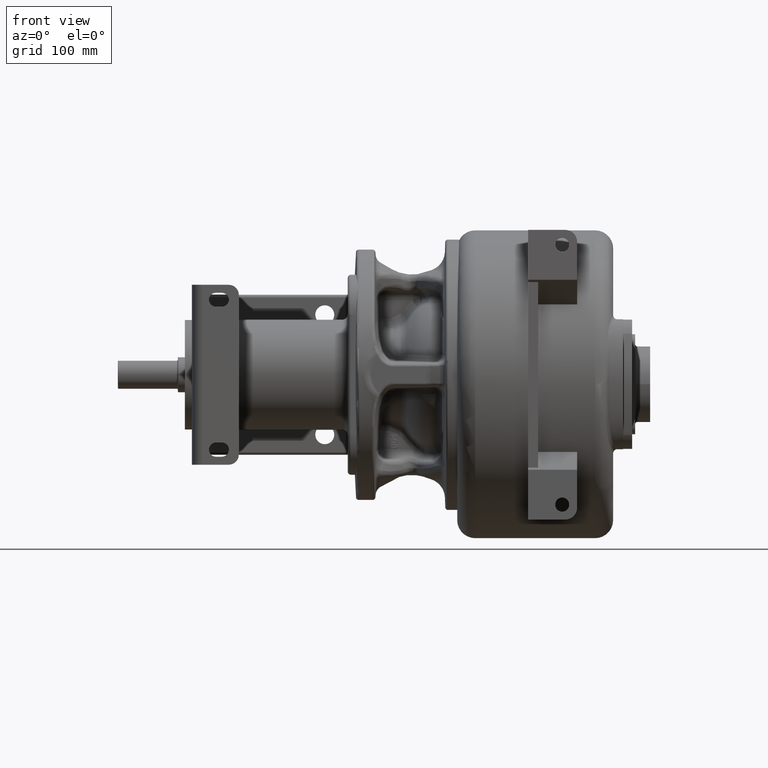
[diagram: clean part render]
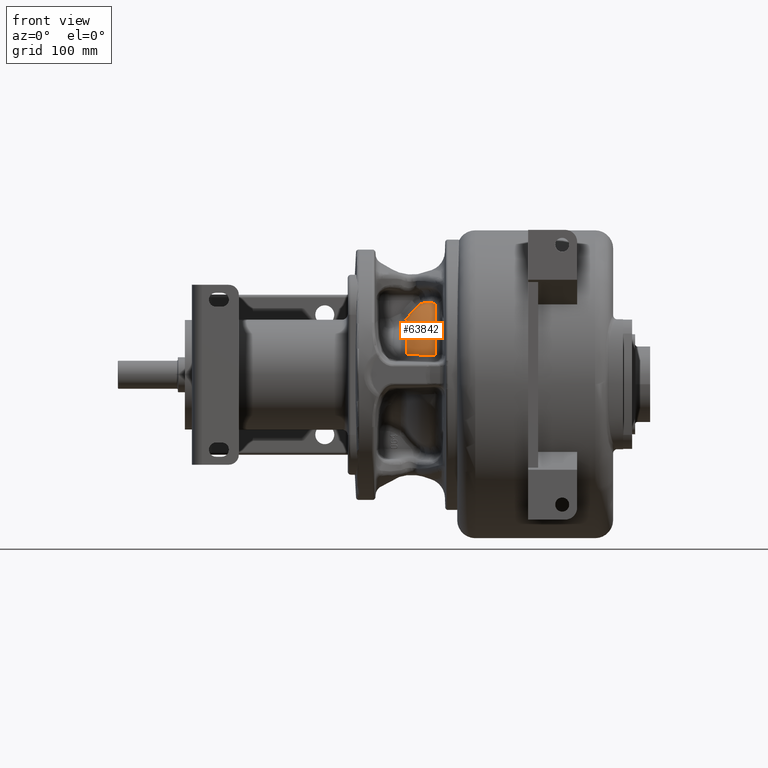
[diagram: same view with one face highlighted and labeled with its STEP entity id]
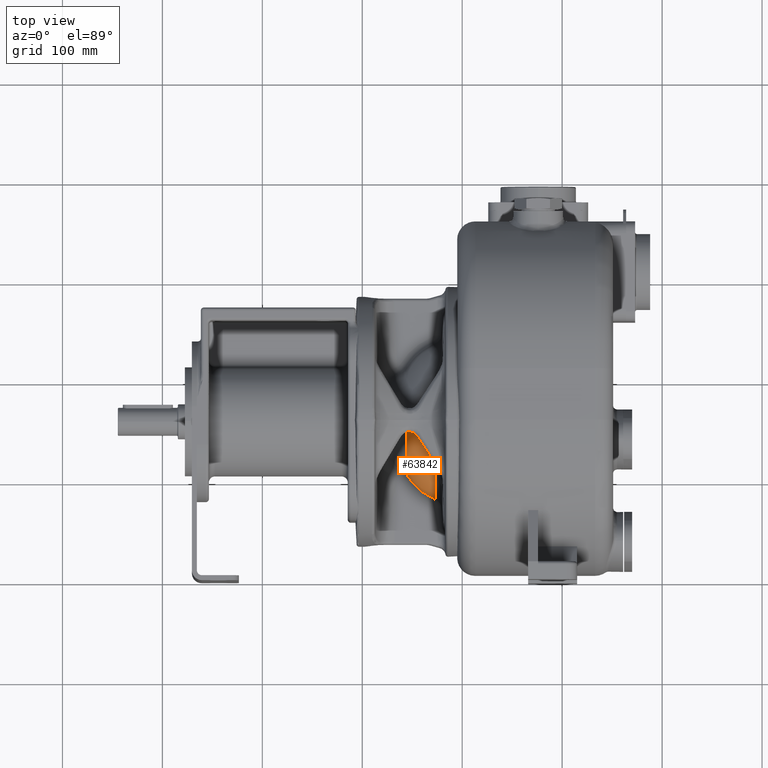
[diagram: same view with one face highlighted and labeled with its STEP entity id]
A machine part, front view. The second image highlights one B-rep face of the part: STEP entity #63842.
A second angle (top view) of the same face is appended — the face is thin or edge-on in the first view.
In plain terms, the highlighted face is a SurfaceOfRevolution surface.
Its self-contained STEP definition (entity closure, byte-faithful):
#20581=CARTESIAN_POINT('',(-1.553906710824E2,1.6E2,0.E0));
#20582=DIRECTION('',(-1.E0,0.E0,0.E0));
#20583=DIRECTION('',(0.E0,-9.318104352073E-1,3.629453303718E-1));
#20584=AXIS2_PLACEMENT_3D('',#20581,#20582,#20583);
#20586=CARTESIAN_POINT('',(-1.553906710824E2,1.487662147560E2,
5.627969362001E1));
#20587=CARTESIAN_POINT('',(-1.553571693739E2,1.487784556453E2,
5.633346855938E1));
#20588=CARTESIAN_POINT('',(-1.552881762258E2,1.488010056583E2,
5.644332701762E1));
#20589=CARTESIAN_POINT('',(-1.551787949230E2,1.488286125656E2,
5.661469154002E1));
#20590=CARTESIAN_POINT('',(-1.550627349282E2,1.488496923397E2,
5.679360003957E1));
#20591=CARTESIAN_POINT('',(-1.549394099956E2,1.488636928575E2,
5.698063042831E1));
#20592=CARTESIAN_POINT('',(-1.548517729464E2,1.488678316376E2,
5.711134703632E1));
#20593=CARTESIAN_POINT('',(-1.548066076292E2,1.488684438731E2,
5.717812660797E1));
#20595=CARTESIAN_POINT('',(-1.548066076292E2,1.488684438731E2,
5.717812660797E1));
#20596=CARTESIAN_POINT('',(-1.545453047589E2,1.488719865066E2,
5.756447819136E1));
#20597=CARTESIAN_POINT('',(-1.540159883866E2,1.488789449724E2,
5.832813037628E1));
#20598=CARTESIAN_POINT('',(-1.532024102161E2,1.488889881602E2,
5.944639583912E1));
#20599=CARTESIAN_POINT('',(-1.523689148230E2,1.488986328139E2,
6.053852044125E1));
#20600=CARTESIAN_POINT('',(-1.515152772400E2,1.489078759409E2,
6.160531047320E1));
#20601=CARTESIAN_POINT('',(-1.506411420296E2,1.489167136477E2,
6.264762392139E1));
#20602=CARTESIAN_POINT('',(-1.497461081435E2,1.489251466215E2,
6.366624803685E1));
#20603=CARTESIAN_POINT('',(-1.488296915525E2,1.489331684983E2,
6.466194375494E1));
#20604=CARTESIAN_POINT('',(-1.478913323538E2,1.489407848467E2,
6.563543574205E1));
#20605=CARTESIAN_POINT('',(-1.469303708569E2,1.489479888088E2,
6.658742318537E1));
#20606=CARTESIAN_POINT('',(-1.459462130374E2,1.489547863910E2,
6.751843322105E1));
#20607=CARTESIAN_POINT('',(-1.452740087190E2,1.489590495287E2,
6.812561050664E1));
#20608=CARTESIAN_POINT('',(-1.449339195408E2,1.489611116712E2,
6.842575734660E1));
#20610=CARTESIAN_POINT('',(-1.449339195408E2,1.489611116712E2,
6.842575734660E1));
#20611=CARTESIAN_POINT('',(-1.448887408888E2,1.489613846742E2,
6.846562969151E1));
#20612=CARTESIAN_POINT('',(-1.447974221043E2,1.489591223767E2,
6.854552478315E1));
#20613=CARTESIAN_POINT('',(-1.446569717118E2,1.489470711373E2,
6.866625430520E1));
#20614=CARTESIAN_POINT('',(-1.445146742012E2,1.489262468529E2,
6.878639708880E1));
#20615=CARTESIAN_POINT('',(-1.443715411559E2,1.488967200999E2,
6.890507199854E1));
#20616=CARTESIAN_POINT('',(-1.442287368928E2,1.488587043097E2,
6.902130777091E1));
#20617=CARTESIAN_POINT('',(-1.440874516300E2,1.488125889415E2,
6.913416228747E1));
#20618=CARTESIAN_POINT('',(-1.439488862619E2,1.487589144351E2,
6.924273098036E1));
#20619=CARTESIAN_POINT('',(-1.438142011265E2,1.486983741060E2,
6.934618957354E1));
#20620=CARTESIAN_POINT('',(-1.436845564788E2,1.486318490775E2,
6.944376502031E1));
#20621=CARTESIAN_POINT('',(-1.435605230980E2,1.485600587425E2,
6.953516549693E1));
#20622=CARTESIAN_POINT('',(-1.434425722972E2,1.484837259686E2,
6.962018737736E1));
#20623=CARTESIAN_POINT('',(-1.433311451987E2,1.484035909346E2,
6.969865895275E1));
#20624=CARTESIAN_POINT('',(-1.432266220109E2,1.483204455805E2,
6.977047006924E1));
#20625=CARTESIAN_POINT('',(-1.431293486904E2,1.482351160127E2,
6.983554636896E1));
#20626=CARTESIAN_POINT('',(-1.430395704213E2,1.481484673871E2,
6.989390268886E1));
#20627=CARTESIAN_POINT('',(-1.429849879994E2,1.480906045761E2,
6.992828355438E1));
#20628=CARTESIAN_POINT('',(-1.429589283547E2,1.480616916683E2,
6.994443093135E1));
#20630=CARTESIAN_POINT('',(-1.429589283547E2,1.480616916683E2,
6.994443093135E1));
#20631=CARTESIAN_POINT('',(-1.428802576200E2,1.479744023214E2,
6.999317685796E1));
#20632=CARTESIAN_POINT('',(-1.427283205894E2,1.478076528920E2,
7.008671895104E1));
#20633=CARTESIAN_POINT('',(-1.425182320922E2,1.475803214520E2,
7.021441148327E1));
#20634=CARTESIAN_POINT('',(-1.423254886623E2,1.473735040117E2,
7.033003461172E1));
#20635=CARTESIAN_POINT('',(-1.421499470200E2,1.471858488328E2,
7.043395441438E1));
#20636=CARTESIAN_POINT('',(-1.419910637210E2,1.470160019297E2,
7.052678190156E1));
#20637=CARTESIAN_POINT('',(-1.418486108647E2,1.468632790070E2,
7.060894122764E1));
#20638=CARTESIAN_POINT('',(-1.417204259947E2,1.467251639830E2,
7.068195433052E1));
#20639=CARTESIAN_POINT('',(-1.416016812314E2,1.465963657527E2,
7.074876568762E1));
#20640=CARTESIAN_POINT('',(-1.414882927778E2,1.464723674803E2,
7.081177695738E1));
#20641=CARTESIAN_POINT('',(-1.413751636166E2,1.463474113076E2,
7.087382422199E1));
#20642=CARTESIAN_POINT('',(-1.412622802320E2,1.462211816905E2,
7.093484693874E1));
#20643=CARTESIAN_POINT('',(-1.411529049338E2,1.460970884804E2,
7.099305970770E1));
#20644=CARTESIAN_POINT('',(-1.410480386901E2,1.459761443931E2,
7.104796299078E1));
#20645=CARTESIAN_POINT('',(-1.409485651453E2,1.458593235642E2,
7.109915071012E1));
#20646=CARTESIAN_POINT('',(-1.408539490995E2,1.457460104420E2,
7.114696852285E1));
#20647=CARTESIAN_POINT('',(-1.407626786826E2,1.456343252665E2,
7.119221066500E1));
#20648=CARTESIAN_POINT('',(-1.406777751037E2,1.455279373344E2,
7.123342171993E1));
#20649=CARTESIAN_POINT('',(-1.406040172042E2,1.454332555222E2,
7.126846975794E1));
#20650=CARTESIAN_POINT('',(-1.405413763311E2,1.453509829135E2,
7.129764102394E1));
#20651=CARTESIAN_POINT('',(-1.404874444212E2,1.452785923176E2,
7.132227723336E1));
#20652=CARTESIAN_POINT('',(-1.404404539073E2,1.452141980122E2,
7.134334734934E1));
#20653=CARTESIAN_POINT('',(-1.403983992312E2,1.451554021235E2,
7.136186453517E1));
#20654=CARTESIAN_POINT('',(-1.403595160186E2,1.450999291345E2,
7.137867011456E1));
#20655=CARTESIAN_POINT('',(-1.403220214622E2,1.450452940188E2,
7.139455909340E1));
#20656=CARTESIAN_POINT('',(-1.402846066100E2,1.449894484937E2,
7.141005761701E1));
#20657=CARTESIAN_POINT('',(-1.402479597966E2,1.449332371782E2,
7.142484095637E1));
#20658=CARTESIAN_POINT('',(-1.402127929707E2,1.448775745364E2,
7.143858866825E1));
#20659=CARTESIAN_POINT('',(-1.401790621942E2,1.448222292831E2,
7.145128954455E1));
#20660=CARTESIAN_POINT('',(-1.401461844761E2,1.447662000546E2,
7.146315643182E1));
#20661=CARTESIAN_POINT('',(-1.401140314270E2,1.447092126145E2,
7.147422372443E1));
#20662=CARTESIAN_POINT('',(-1.400829100555E2,1.446518453119E2,
7.148439372178E1));
#20663=CARTESIAN_POINT('',(-1.400527196205E2,1.445940556467E2,
7.149373235215E1));
#20664=CARTESIAN_POINT('',(-1.400226769144E2,1.445347766706E2,
7.150257320821E1));
#20665=CARTESIAN_POINT('',(-1.399937000021E2,1.444763042875E2,
7.151075087920E1));
#20666=CARTESIAN_POINT('',(-1.399658007861E2,1.444191328771E2,
7.151836970654E1));
#20667=CARTESIAN_POINT('',(-1.399387770652E2,1.443631773623E2,
7.152556163318E1));
#20668=CARTESIAN_POINT('',(-1.399123677354E2,1.443081514366E2,
7.153245559916E1));
#20669=CARTESIAN_POINT('',(-1.398863644581E2,1.442536503785E2,
7.153911574805E1));
#20670=CARTESIAN_POINT('',(-1.398685939473E2,1.442161512471E2,
7.154357151387E1));
#20671=CARTESIAN_POINT('',(-1.398596642944E2,1.441972332824E2,
7.154578358295E1));
#20673=CARTESIAN_POINT('',(-1.398596642944E2,1.441972332824E2,
7.154578358295E1));
#20674=CARTESIAN_POINT('',(-1.398062266660E2,1.440840306924E2,
7.155902276788E1));
#20675=CARTESIAN_POINT('',(-1.396988467288E2,1.438585003900E2,
7.158531068945E1));
#20676=CARTESIAN_POINT('',(-1.395374872460E2,1.435238519088E2,
7.162357598526E1));
#20677=CARTESIAN_POINT('',(-1.393740204241E2,1.431887830157E2,
7.166105376281E1));
#20678=CARTESIAN_POINT('',(-1.392082814098E2,1.428532101822E2,
7.169780619412E1));
#20679=CARTESIAN_POINT('',(-1.390390038572E2,1.425146875213E2,
7.173410985160E1));
#20680=CARTESIAN_POINT('',(-1.388595986518E2,1.421605571831E2,
7.177130497996E1));
#20681=CARTESIAN_POINT('',(-1.386640966115E2,1.417799559533E2,
7.181038550584E1));
#20682=CARTESIAN_POINT('',(-1.384453781979E2,1.413603459002E2,
7.185232298554E1));
#20683=CARTESIAN_POINT('',(-1.381991221767E2,1.408953131270E2,
7.189730165203E1));
#20684=CARTESIAN_POINT('',(-1.379225351443E2,1.403817686692E2,
7.194502646014E1));
#20685=CARTESIAN_POINT('',(-1.376121531017E2,1.398159994835E2,
7.199517975113E1));
#20686=CARTESIAN_POINT('',(-1.372642844146E2,1.391945572260E2,
7.204728225864E1));
#20687=CARTESIAN_POINT('',(-1.368758144656E2,1.385155042289E2,
7.210052616308E1));
#20688=CARTESIAN_POINT('',(-1.364400965856E2,1.377712978793E2,
7.215427244623E1));
#20689=CARTESIAN_POINT('',(-1.359461698271E2,1.369486891627E2,
7.220792033615E1));
#20690=CARTESIAN_POINT('',(-1.353830393406E2,1.360366153334E2,
7.226019081884E1));
#20691=CARTESIAN_POINT('',(-1.347385277058E2,1.350240907003E2,
7.230896265868E1));
#20692=CARTESIAN_POINT('',(-1.340004546036E2,1.339022684282E2,
7.235107405587E1));
#20693=CARTESIAN_POINT('',(-1.334343239859E2,1.330723046279E2,
7.237193394945E1));
#20694=CARTESIAN_POINT('',(-1.331319481018E2,1.326382617555E2,
7.237964556879E1));
#20696=CARTESIAN_POINT('',(-1.331319481018E2,1.326382617555E2,
7.237964556879E1));
#20697=CARTESIAN_POINT('',(-1.330604389367E2,1.325356145568E2,
7.238146930086E1));
#20698=CARTESIAN_POINT('',(-1.329177308924E2,1.323303083928E2,
7.238421071660E1));
#20699=CARTESIAN_POINT('',(-1.327045513043E2,1.320222296052E2,
7.238561444685E1));
#20700=CARTESIAN_POINT('',(-1.325631643500E2,1.318169616198E2,
7.238475082292E1));
#20701=CARTESIAN_POINT('',(-1.324926464315E2,1.317143429119E2,
7.238387120088E1));
#20703=CARTESIAN_POINT('',(-1.324926464315E2,1.317143429119E2,
7.238387120088E1));
#20704=CARTESIAN_POINT('',(-1.323069175642E2,1.314440675673E2,
7.238155447207E1));
#20705=CARTESIAN_POINT('',(-1.319405287121E2,1.309048848938E2,
7.236970035075E1));
#20706=CARTESIAN_POINT('',(-1.314056703956E2,1.300993253116E2,
7.233078123022E1));
#20707=CARTESIAN_POINT('',(-1.310607526314E2,1.295670828822E2,
7.229128321001E1));
#20708=CARTESIAN_POINT('',(-1.308911254489E2,1.293020085863E2,
7.226825006822E1));
#20710=CARTESIAN_POINT('',(-1.308911254489E2,1.293020085863E2,
7.226825006822E1));
#20711=CARTESIAN_POINT('',(-1.307440604235E2,1.290721918242E2,
7.224828053441E1));
#20712=CARTESIAN_POINT('',(-1.304559634238E2,1.286189320004E2,
7.220449605204E1));
#20713=CARTESIAN_POINT('',(-1.300430458305E2,1.279601130309E2,
7.212855785768E1));
#20714=CARTESIAN_POINT('',(-1.296462827610E2,1.273175980161E2,
7.204275975406E1));
#20715=CARTESIAN_POINT('',(-1.292639979486E2,1.266886797612E2,
7.194744794220E1));
#20716=CARTESIAN_POINT('',(-1.288941702241E2,1.260696521952E2,
7.184249003735E1));
#20717=CARTESIAN_POINT('',(-1.285399944001E2,1.254654806242E2,
7.172914103316E1));
#20718=CARTESIAN_POINT('',(-1.282053736591E2,1.248830110760E2,
7.160954191712E1));
#20719=CARTESIAN_POINT('',(-1.278843001899E2,1.243116155813E2,
7.148218322180E1));
#20720=CARTESIAN_POINT('',(-1.275697057415E2,1.237377045640E2,
7.134395332856E1));
#20721=CARTESIAN_POINT('',(-1.272623113227E2,1.231607434245E2,
7.119419102633E1));
#20722=CARTESIAN_POINT('',(-1.269640061992E2,1.225818560858E2,
7.103257691069E1));
#20723=CARTESIAN_POINT('',(-1.267726567505E2,1.221958307142E2,
7.091690060423E1));
#20724=CARTESIAN_POINT('',(-1.266790874292E2,1.220026270596E2,
7.085689845002E1));
#20726=CARTESIAN_POINT('',(-1.266790874287E2,1.6E2,0.E0));
#20727=DIRECTION('',(-1.E0,0.E0,0.E0));
#20728=DIRECTION('',(0.E0,-9.710009761513E-1,2.390755201046E-1));
#20729=AXIS2_PLACEMENT_3D('',#20726,#20727,#20728);
#20731=CARTESIAN_POINT('',(-1.266790874288E2,8.192946596711E1,
1.922217792483E1));
#20732=CARTESIAN_POINT('',(-1.267704239956E2,8.196851361594E1,
1.922386980165E1));
#20733=CARTESIAN_POINT('',(-1.269526776220E2,8.204690695594E1,
1.922743773668E1));
#20734=CARTESIAN_POINT('',(-1.272248000990E2,8.216538609091E1,
1.923333722458E1));
#20735=CARTESIAN_POINT('',(-1.274053835416E2,8.224496457045E1,
1.923763214466E1));
#20736=CARTESIAN_POINT('',(-1.274954674617E2,8.228490109251E1,
1.923986927498E1));
#20738=CARTESIAN_POINT('',(-1.274954674617E2,8.228490109251E1,
1.923986927498E1));
#20739=CARTESIAN_POINT('',(-1.279947752764E2,8.250625737112E1,
1.925226905707E1));
#20740=CARTESIAN_POINT('',(-1.289787457245E2,8.295597833155E1,
1.927764031436E1));
#20741=CARTESIAN_POINT('',(-1.304110477946E2,8.365042685564E1,
1.931736910791E1));
#20742=CARTESIAN_POINT('',(-1.318018531571E2,8.436452590180E1,
1.935879459709E1));
#20743=CARTESIAN_POINT('',(-1.331528983608E2,8.509799803588E1,
1.940192315985E1));
#20744=CARTESIAN_POINT('',(-1.344661086159E2,8.585079998946E1,
1.944678098751E1));
#20745=CARTESIAN_POINT('',(-1.357431488080E2,8.662288840230E1,
1.949338399979E1));
#20746=CARTESIAN_POINT('',(-1.369856319411E2,8.741432527900E1,
1.954176046494E1));
#20747=CARTESIAN_POINT('',(-1.381950144622E2,8.822520831333E1,
1.959193016320E1));
#20748=CARTESIAN_POINT('',(-1.393726119418E2,8.905566891780E1,
1.964392054407E1));
#20749=CARTESIAN_POINT('',(-1.405196832409E2,8.990592031437E1,
1.969775330832E1));
#20750=CARTESIAN_POINT('',(-1.416373191171E2,9.077617333126E1,
1.975345439476E1));
#20751=CARTESIAN_POINT('',(-1.427266166779E2,9.166675712807E1,
1.981105004923E1));
#20752=CARTESIAN_POINT('',(-1.437886915671E2,9.257814708347E1,
1.987057377771E1));
#20753=CARTESIAN_POINT('',(-1.448245966254E2,9.351090953310E1,
1.993206631530E1));
#20754=CARTESIAN_POINT('',(-1.458352421872E2,9.446562233838E1,
1.999555928819E1));
#20755=CARTESIAN_POINT('',(-1.468214663746E2,9.544293334687E1,
2.006109521985E1));
#20756=CARTESIAN_POINT('',(-1.477841650233E2,9.644369074403E1,
2.012871890545E1));
#20757=CARTESIAN_POINT('',(-1.487242786251E2,9.746897757480E1,
2.019849454646E1));
#20758=CARTESIAN_POINT('',(-1.496419163746E2,9.851912845687E1,
2.027043079560E1));
#20759=CARTESIAN_POINT('',(-1.505363781643E2,9.959350053540E1,
2.034446201255E1));
#20760=CARTESIAN_POINT('',(-1.514091046961E2,1.006939872893E2,
2.042070070361E1));
#20761=CARTESIAN_POINT('',(-1.522648873722E2,1.018274831505E2,
2.049959541510E1));
#20762=CARTESIAN_POINT('',(-1.531022279639E2,1.029935895127E2,
2.058110369372E1));
#20763=CARTESIAN_POINT('',(-1.539091226099E2,1.041756512791E2,
2.066401788985E1));
#20764=CARTESIAN_POINT('',(-1.546780049080E2,1.053604227256E2,
2.074737093797E1));
#20765=CARTESIAN_POINT('',(-1.551578556806E2,1.061374513373E2,
2.080215841444E1));
#20766=CARTESIAN_POINT('',(-1.553906710824E2,1.065234823770E2,
2.082940008231E1));
#29601=CARTESIAN_POINT('',(-1.553906710824E2,1.065234823770E2,
2.082940008231E1));
#29602=CARTESIAN_POINT('',(-1.553906710824E2,1.487662147560E2,
5.627969361999E1));
#29603=VERTEX_POINT('',#29601);
#29604=VERTEX_POINT('',#29602);
#29704=VERTEX_POINT('',#20738);
#29724=CARTESIAN_POINT('',(-1.266790874287E2,8.192946596703E1,
1.922217792484E1));
#29725=CARTESIAN_POINT('',(-1.266790874287E2,1.220026270593E2,
7.085689845013E1));
#29726=VERTEX_POINT('',#29724);
#29727=VERTEX_POINT('',#29725);
#30037=VERTEX_POINT('',#20710);
#30038=VERTEX_POINT('',#20703);
#30039=VERTEX_POINT('',#20696);
#30040=VERTEX_POINT('',#20673);
#30041=VERTEX_POINT('',#20630);
#30042=VERTEX_POINT('',#20610);
#30044=VERTEX_POINT('',#20595);
#63808=CARTESIAN_POINT('',(-1.263391648445E2,7.945923085243E1,0.E0));
#63809=CARTESIAN_POINT('',(-1.323946542274E2,8.191237287382E1,0.E0));
#63810=CARTESIAN_POINT('',(-1.434135308211E2,8.816729078344E1,0.E0));
#63811=CARTESIAN_POINT('',(-1.519924729541E2,9.743527682071E1,0.E0));
#63812=CARTESIAN_POINT('',(-1.555944423568E2,1.029182636891E2,0.E0));
#63814=CARTESIAN_POINT('',(-9.283303884779E1,1.6E2,0.E0));
#63815=DIRECTION('',(-1.E0,0.E0,0.E0));
#63816=AXIS1_PLACEMENT('',#63814,#63815);
#63817=SURFACE_OF_REVOLUTION('',#63813,#63816);
#63818=ORIENTED_EDGE('',*,*,#63798,.T.);
#63820=ORIENTED_EDGE('',*,*,#63819,.T.);
#63822=ORIENTED_EDGE('',*,*,#63821,.T.);
#63824=ORIENTED_EDGE('',*,*,#63823,.T.);
#63826=ORIENTED_EDGE('',*,*,#63825,.T.);
#63828=ORIENTED_EDGE('',*,*,#63827,.T.);
#63830=ORIENTED_EDGE('',*,*,#63829,.T.);
#63832=ORIENTED_EDGE('',*,*,#63831,.T.);
#63834=ORIENTED_EDGE('',*,*,#63833,.T.);
#63835=ORIENTED_EDGE('',*,*,#49139,.F.);
#63837=ORIENTED_EDGE('',*,*,#63836,.T.);
#63839=ORIENTED_EDGE('',*,*,#63838,.T.);
#63840=EDGE_LOOP('',(#63818,#63820,#63822,#63824,#63826,#63828,#63830,#63832,
#63834,#63835,#63837,#63839));
#63841=FACE_OUTER_BOUND('',#63840,.F.);
#63842=ADVANCED_FACE('',(#63841),#63817,.T.);
#20585=CIRCLE('',#20584,5.738991065395E1);
#20594=B_SPLINE_CURVE_WITH_KNOTS('',3,(#20586,#20587,#20588,#20589,#20590,
#20591,#20592,#20593),.UNSPECIFIED.,.F.,.F.,(4,1,1,1,1,4),(0.E0,2.E-1,4.E-1,
6.E-1,8.E-1,1.E0),.UNSPECIFIED.);
#20609=B_SPLINE_CURVE_WITH_KNOTS('',3,(#20595,#20596,#20597,#20598,#20599,
#20600,#20601,#20602,#20603,#20604,#20605,#20606,#20607,#20608),.UNSPECIFIED.,
.F.,.F.,(4,1,1,1,1,1,1,1,1,1,1,4),(0.E0,9.090909090909E-2,1.818181818182E-1,
2.727272727273E-1,3.636363636364E-1,4.545454545455E-1,5.454545454545E-1,
6.363636363636E-1,7.272727272727E-1,8.181818181818E-1,9.090909090909E-1,1.E0),
.UNSPECIFIED.);
#20629=B_SPLINE_CURVE_WITH_KNOTS('',3,(#20610,#20611,#20612,#20613,#20614,
#20615,#20616,#20617,#20618,#20619,#20620,#20621,#20622,#20623,#20624,#20625,
#20626,#20627,#20628),.UNSPECIFIED.,.F.,.F.,(4,1,1,1,1,1,1,1,1,1,1,1,1,1,1,1,4),
(0.E0,6.25E-2,1.25E-1,1.875E-1,2.5E-1,3.125E-1,3.75E-1,4.375E-1,5.E-1,5.625E-1,
6.25E-1,6.875E-1,7.5E-1,8.125E-1,8.75E-1,9.375E-1,1.E0),.UNSPECIFIED.);
#20672=B_SPLINE_CURVE_WITH_KNOTS('',3,(#20630,#20631,#20632,#20633,#20634,
#20635,#20636,#20637,#20638,#20639,#20640,#20641,#20642,#20643,#20644,#20645,
#20646,#20647,#20648,#20649,#20650,#20651,#20652,#20653,#20654,#20655,#20656,
#20657,#20658,#20659,#20660,#20661,#20662,#20663,#20664,#20665,#20666,#20667,
#20668,#20669,#20670,#20671),.UNSPECIFIED.,.F.,.F.,(4,1,1,1,1,1,1,1,1,1,1,1,1,1,
1,1,1,1,1,1,1,1,1,1,1,1,1,1,1,1,1,1,1,1,1,1,1,1,1,4),(0.E0,2.564102564103E-2,
5.128205128205E-2,7.692307692308E-2,1.025641025641E-1,1.282051282051E-1,
1.538461538462E-1,1.794871794872E-1,2.051282051282E-1,2.307692307692E-1,
2.564102564103E-1,2.820512820513E-1,3.076923076923E-1,3.333333333333E-1,
3.589743589744E-1,3.846153846154E-1,4.102564102564E-1,4.358974358974E-1,
4.615384615385E-1,4.871794871795E-1,5.128205128205E-1,5.384615384615E-1,
5.641025641026E-1,5.897435897436E-1,6.153846153846E-1,6.410256410256E-1,
6.666666666667E-1,6.923076923077E-1,7.179487179487E-1,7.435897435897E-1,
7.692307692308E-1,7.948717948718E-1,8.205128205128E-1,8.461538461538E-1,
8.717948717949E-1,8.974358974359E-1,9.230769230769E-1,9.487179487179E-1,
9.743589743590E-1,1.E0),.UNSPECIFIED.);
#20695=B_SPLINE_CURVE_WITH_KNOTS('',3,(#20673,#20674,#20675,#20676,#20677,
#20678,#20679,#20680,#20681,#20682,#20683,#20684,#20685,#20686,#20687,#20688,
#20689,#20690,#20691,#20692,#20693,#20694),.UNSPECIFIED.,.F.,.F.,(4,1,1,1,1,1,1,
1,1,1,1,1,1,1,1,1,1,1,1,4),(0.E0,5.263157894737E-2,1.052631578947E-1,
1.578947368421E-1,2.105263157895E-1,2.631578947368E-1,3.157894736842E-1,
3.684210526316E-1,4.210526315789E-1,4.736842105263E-1,5.263157894737E-1,
5.789473684211E-1,6.315789473684E-1,6.842105263158E-1,7.368421052632E-1,
7.894736842105E-1,8.421052631579E-1,8.947368421053E-1,9.473684210526E-1,1.E0),
.UNSPECIFIED.);
#20702=B_SPLINE_CURVE_WITH_KNOTS('',3,(#20696,#20697,#20698,#20699,#20700,
#20701),.UNSPECIFIED.,.F.,.F.,(4,1,1,4),(0.E0,3.333333333333E-1,
6.666666666667E-1,1.E0),.UNSPECIFIED.);
#20709=B_SPLINE_CURVE_WITH_KNOTS('',3,(#20703,#20704,#20705,#20706,#20707,
#20708),.UNSPECIFIED.,.F.,.F.,(4,1,1,4),(0.E0,3.333333333333E-1,
6.666666666667E-1,1.E0),.UNSPECIFIED.);
#20725=B_SPLINE_CURVE_WITH_KNOTS('',3,(#20710,#20711,#20712,#20713,#20714,
#20715,#20716,#20717,#20718,#20719,#20720,#20721,#20722,#20723,#20724),
.UNSPECIFIED.,.F.,.F.,(4,1,1,1,1,1,1,1,1,1,1,1,4),(0.E0,8.333333333333E-2,
1.666666666667E-1,2.5E-1,3.333333333333E-1,4.166666666667E-1,5.E-1,
5.833333333333E-1,6.666666666667E-1,7.5E-1,8.333333333333E-1,9.166666666667E-1,
1.E0),.UNSPECIFIED.);
#20730=CIRCLE('',#20729,8.040211693959E1);
#20737=B_SPLINE_CURVE_WITH_KNOTS('',3,(#20731,#20732,#20733,#20734,#20735,
#20736),.UNSPECIFIED.,.F.,.F.,(4,1,1,4),(0.E0,3.333333333333E-1,
6.666666666667E-1,1.E0),.UNSPECIFIED.);
#20767=B_SPLINE_CURVE_WITH_KNOTS('',3,(#20738,#20739,#20740,#20741,#20742,
#20743,#20744,#20745,#20746,#20747,#20748,#20749,#20750,#20751,#20752,#20753,
#20754,#20755,#20756,#20757,#20758,#20759,#20760,#20761,#20762,#20763,#20764,
#20765,#20766),.UNSPECIFIED.,.F.,.F.,(4,1,1,1,1,1,1,1,1,1,1,1,1,1,1,1,1,1,1,1,1,
1,1,1,1,1,4),(0.E0,3.846153846154E-2,7.692307692308E-2,1.153846153846E-1,
1.538461538462E-1,1.923076923077E-1,2.307692307692E-1,2.692307692308E-1,
3.076923076923E-1,3.461538461538E-1,3.846153846154E-1,4.230769230769E-1,
4.615384615385E-1,5.E-1,5.384615384615E-1,5.769230769231E-1,6.153846153846E-1,
6.538461538462E-1,6.923076923077E-1,7.307692307692E-1,7.692307692308E-1,
8.076923076923E-1,8.461538461538E-1,8.846153846154E-1,9.230769230769E-1,
9.615384615385E-1,1.E0),.UNSPECIFIED.);
#49139=EDGE_CURVE('',#29726,#29727,#20730,.T.);
#63798=EDGE_CURVE('',#29603,#29604,#20585,.T.);
#63813=B_SPLINE_CURVE_WITH_KNOTS('',3,(#63808,#63809,#63810,#63811,#63812),
.UNSPECIFIED.,.F.,.F.,(4,1,4),(0.E0,5.E-1,1.E0),.UNSPECIFIED.);
#63819=EDGE_CURVE('',#29604,#30044,#20594,.T.);
#63821=EDGE_CURVE('',#30044,#30042,#20609,.T.);
#63823=EDGE_CURVE('',#30042,#30041,#20629,.T.);
#63825=EDGE_CURVE('',#30041,#30040,#20672,.T.);
#63827=EDGE_CURVE('',#30040,#30039,#20695,.T.);
#63829=EDGE_CURVE('',#30039,#30038,#20702,.T.);
#63831=EDGE_CURVE('',#30038,#30037,#20709,.T.);
#63833=EDGE_CURVE('',#30037,#29727,#20725,.T.);
#63836=EDGE_CURVE('',#29726,#29704,#20737,.T.);
#63838=EDGE_CURVE('',#29704,#29603,#20767,.T.);